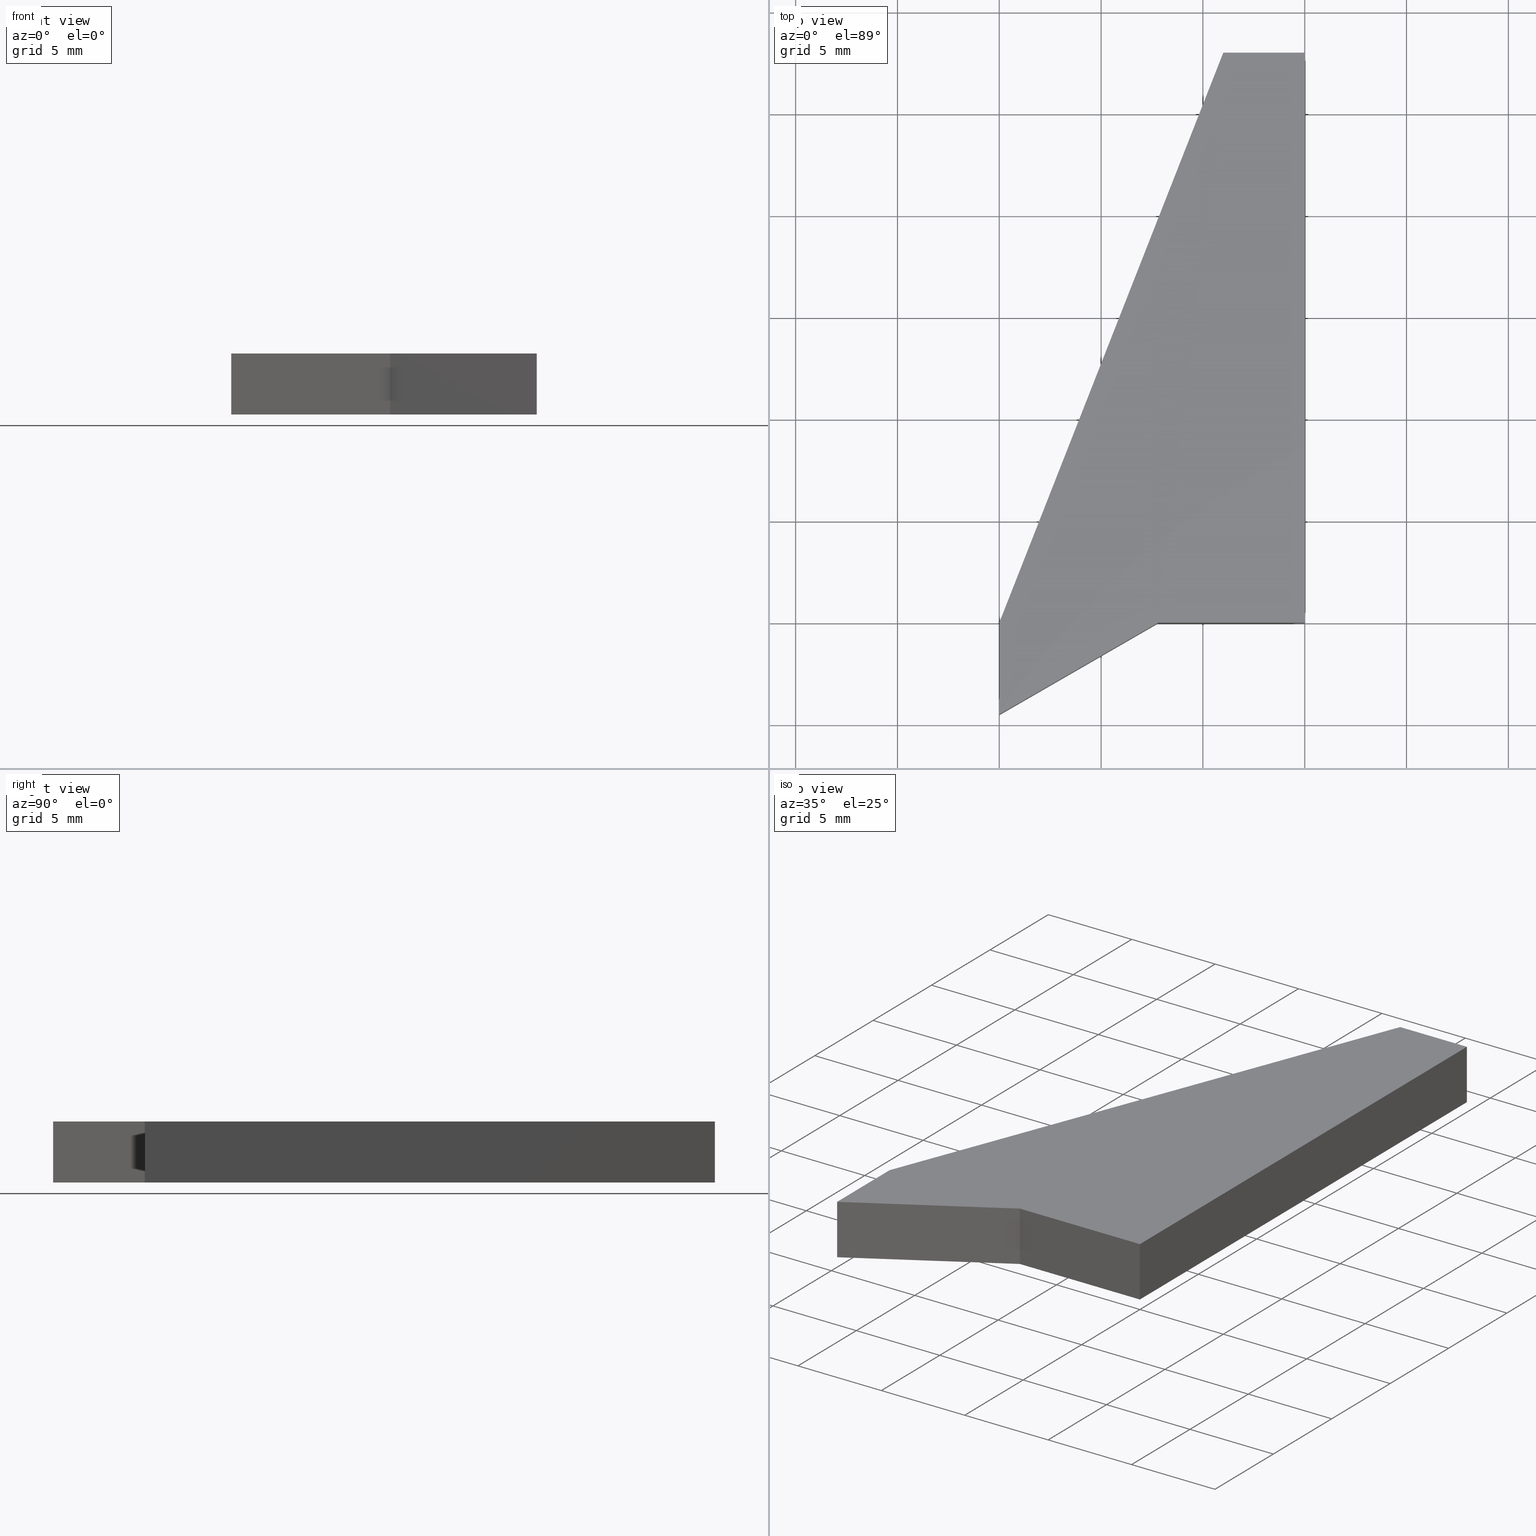
[diagram: canonical four-view strip — front | top / right | iso, engineering-drawing reading convention]
A machine part, canonical four-view strip (front | top / right | iso — engineering-drawing reading convention). The complete STEP part file that produces these views, byte-faithful:
ISO-10303-21;
HEADER;
/* Generated by software containing ST-Developer
 * from STEP Tools, Inc. (www.steptools.com) 
 */

FILE_DESCRIPTION(
/* description */ (''),
/* implementation_level */ '2;1');

FILE_NAME(
/* name */ 'E_3_01_11_00_00_WKZ-0201.stp',
/* time_stamp */ '2025-11-24T13:05:30+01:00',
/* author */ ('d.fischer'),
/* organization */ (''),
/* preprocessor_version */ 'ST-DEVELOPER v20',
/* originating_system */ 'Autodesk Inventor 2025',
/* authorisation */ '');

FILE_SCHEMA (('AUTOMOTIVE_DESIGN { 1 0 10303 214 3 1 1 }'));
ENDSEC;

DATA;
#10=MECHANICAL_DESIGN_GEOMETRIC_PRESENTATION_REPRESENTATION('',(#13),#258);
#11=SHAPE_REPRESENTATION_RELATIONSHIP('SRR','None',#265,#12);
#12=ADVANCED_BREP_SHAPE_REPRESENTATION('',(#14),#257);
#13=STYLED_ITEM('',(#274),#14);
#14=MANIFOLD_SOLID_BREP('Volumenk\X\F6rper1',#149);
#15=FACE_OUTER_BOUND('',#23,.T.);
#16=FACE_OUTER_BOUND('',#24,.T.);
#17=FACE_OUTER_BOUND('',#25,.T.);
#18=FACE_OUTER_BOUND('',#26,.T.);
#19=FACE_OUTER_BOUND('',#27,.T.);
#20=FACE_OUTER_BOUND('',#28,.T.);
#21=FACE_OUTER_BOUND('',#29,.T.);
#22=FACE_OUTER_BOUND('',#30,.T.);
#23=EDGE_LOOP('',(#97,#98,#99,#100,#101,#102));
#24=EDGE_LOOP('',(#103,#104,#105,#106));
#25=EDGE_LOOP('',(#107,#108,#109,#110));
#26=EDGE_LOOP('',(#111,#112,#113,#114));
#27=EDGE_LOOP('',(#115,#116,#117,#118));
#28=EDGE_LOOP('',(#119,#120,#121,#122));
#29=EDGE_LOOP('',(#123,#124,#125,#126));
#30=EDGE_LOOP('',(#127,#128,#129,#130,#131,#132));
#31=LINE('',#220,#49);
#32=LINE('',#222,#50);
#33=LINE('',#224,#51);
#34=LINE('',#226,#52);
#35=LINE('',#228,#53);
#36=LINE('',#229,#54);
#37=LINE('',#233,#55);
#38=LINE('',#234,#56);
#39=LINE('',#235,#57);
#40=LINE('',#238,#58);
#41=LINE('',#239,#59);
#42=LINE('',#242,#60);
#43=LINE('',#243,#61);
#44=LINE('',#246,#62);
#45=LINE('',#247,#63);
#46=LINE('',#250,#64);
#47=LINE('',#251,#65);
#48=LINE('',#253,#66);
#49=VECTOR('',#184,10.);
#50=VECTOR('',#185,10.);
#51=VECTOR('',#186,10.);
#52=VECTOR('',#187,10.);
#53=VECTOR('',#188,10.);
#54=VECTOR('',#189,10.);
#55=VECTOR('',#192,10.);
#56=VECTOR('',#193,10.);
#57=VECTOR('',#194,10.);
#58=VECTOR('',#197,10.);
#59=VECTOR('',#198,10.);
#60=VECTOR('',#201,10.);
#61=VECTOR('',#202,10.);
#62=VECTOR('',#205,10.);
#63=VECTOR('',#206,10.);
#64=VECTOR('',#209,10.);
#65=VECTOR('',#210,10.);
#66=VECTOR('',#213,10.);
#67=VERTEX_POINT('',#218);
#68=VERTEX_POINT('',#219);
#69=VERTEX_POINT('',#221);
#70=VERTEX_POINT('',#223);
#71=VERTEX_POINT('',#225);
#72=VERTEX_POINT('',#227);
#73=VERTEX_POINT('',#231);
#74=VERTEX_POINT('',#232);
#75=VERTEX_POINT('',#237);
#76=VERTEX_POINT('',#241);
#77=VERTEX_POINT('',#245);
#78=VERTEX_POINT('',#249);
#79=EDGE_CURVE('',#67,#68,#31,.T.);
#80=EDGE_CURVE('',#69,#67,#32,.T.);
#81=EDGE_CURVE('',#70,#69,#33,.T.);
#82=EDGE_CURVE('',#71,#70,#34,.T.);
#83=EDGE_CURVE('',#72,#71,#35,.T.);
#84=EDGE_CURVE('',#68,#72,#36,.T.);
#85=EDGE_CURVE('',#73,#74,#37,.T.);
#86=EDGE_CURVE('',#74,#70,#38,.T.);
#87=EDGE_CURVE('',#73,#69,#39,.T.);
#88=EDGE_CURVE('',#74,#75,#40,.T.);
#89=EDGE_CURVE('',#75,#71,#41,.T.);
#90=EDGE_CURVE('',#75,#76,#42,.T.);
#91=EDGE_CURVE('',#76,#72,#43,.T.);
#92=EDGE_CURVE('',#76,#77,#44,.T.);
#93=EDGE_CURVE('',#77,#68,#45,.T.);
#94=EDGE_CURVE('',#77,#78,#46,.T.);
#95=EDGE_CURVE('',#67,#78,#47,.T.);
#96=EDGE_CURVE('',#78,#73,#48,.T.);
#97=ORIENTED_EDGE('',*,*,#79,.F.);
#98=ORIENTED_EDGE('',*,*,#80,.F.);
#99=ORIENTED_EDGE('',*,*,#81,.F.);
#100=ORIENTED_EDGE('',*,*,#82,.F.);
#101=ORIENTED_EDGE('',*,*,#83,.F.);
#102=ORIENTED_EDGE('',*,*,#84,.F.);
#103=ORIENTED_EDGE('',*,*,#85,.T.);
#104=ORIENTED_EDGE('',*,*,#86,.T.);
#105=ORIENTED_EDGE('',*,*,#81,.T.);
#106=ORIENTED_EDGE('',*,*,#87,.F.);
#107=ORIENTED_EDGE('',*,*,#88,.T.);
#108=ORIENTED_EDGE('',*,*,#89,.T.);
#109=ORIENTED_EDGE('',*,*,#82,.T.);
#110=ORIENTED_EDGE('',*,*,#86,.F.);
#111=ORIENTED_EDGE('',*,*,#90,.T.);
#112=ORIENTED_EDGE('',*,*,#91,.T.);
#113=ORIENTED_EDGE('',*,*,#83,.T.);
#114=ORIENTED_EDGE('',*,*,#89,.F.);
#115=ORIENTED_EDGE('',*,*,#92,.T.);
#116=ORIENTED_EDGE('',*,*,#93,.T.);
#117=ORIENTED_EDGE('',*,*,#84,.T.);
#118=ORIENTED_EDGE('',*,*,#91,.F.);
#119=ORIENTED_EDGE('',*,*,#94,.T.);
#120=ORIENTED_EDGE('',*,*,#95,.F.);
#121=ORIENTED_EDGE('',*,*,#79,.T.);
#122=ORIENTED_EDGE('',*,*,#93,.F.);
#123=ORIENTED_EDGE('',*,*,#96,.T.);
#124=ORIENTED_EDGE('',*,*,#87,.T.);
#125=ORIENTED_EDGE('',*,*,#80,.T.);
#126=ORIENTED_EDGE('',*,*,#95,.T.);
#127=ORIENTED_EDGE('',*,*,#85,.F.);
#128=ORIENTED_EDGE('',*,*,#96,.F.);
#129=ORIENTED_EDGE('',*,*,#94,.F.);
#130=ORIENTED_EDGE('',*,*,#92,.F.);
#131=ORIENTED_EDGE('',*,*,#90,.F.);
#132=ORIENTED_EDGE('',*,*,#88,.F.);
#133=PLANE('',#172);
#134=PLANE('',#173);
#135=PLANE('',#174);
#136=PLANE('',#175);
#137=PLANE('',#176);
#138=PLANE('',#177);
#139=PLANE('',#178);
#140=PLANE('',#179);
#141=ADVANCED_FACE('',(#15),#133,.F.);
#142=ADVANCED_FACE('',(#16),#134,.T.);
#143=ADVANCED_FACE('',(#17),#135,.T.);
#144=ADVANCED_FACE('',(#18),#136,.T.);
#145=ADVANCED_FACE('',(#19),#137,.T.);
#146=ADVANCED_FACE('',(#20),#138,.T.);
#147=ADVANCED_FACE('',(#21),#139,.T.);
#148=ADVANCED_FACE('',(#22),#140,.T.);
#149=CLOSED_SHELL('',(#141,#142,#143,#144,#145,#146,#147,#148));
#150=DERIVED_UNIT_ELEMENT(#153,1.);
#151=DERIVED_UNIT_ELEMENT(#260,-3.);
#152=DIMENSIONAL_EXPONENTS(0.,1.,0.,0.,0.,0.,0.);
#153=(
CONVERSION_BASED_UNIT('gram',#155)
MASS_UNIT()
NAMED_UNIT(#152)
);
#154=(
MASS_UNIT()
NAMED_UNIT(*)
SI_UNIT(.KILO.,.GRAM.)
);
#155=MASS_MEASURE_WITH_UNIT(MASS_MEASURE(0.001),#154);
#156=DERIVED_UNIT((#150,#151));
#157=MEASURE_REPRESENTATION_ITEM('density measure',
POSITIVE_RATIO_MEASURE(8.03),#156);
#158=PROPERTY_DEFINITION_REPRESENTATION(#163,#160);
#159=PROPERTY_DEFINITION_REPRESENTATION(#164,#161);
#160=REPRESENTATION('material name',(#162),#257);
#161=REPRESENTATION('density',(#157),#257);
#162=DESCRIPTIVE_REPRESENTATION_ITEM('1.4301','1.4301');
#163=PROPERTY_DEFINITION('material property','material name',#267);
#164=PROPERTY_DEFINITION('material property','density of part',#267);
#165=DATE_TIME_ROLE('creation_date');
#166=APPLIED_DATE_AND_TIME_ASSIGNMENT(#167,#165,(#267));
#167=DATE_AND_TIME(#168,#169);
#168=CALENDAR_DATE(2011,26,10);
#169=LOCAL_TIME(0,0,0.,#170);
#170=COORDINATED_UNIVERSAL_TIME_OFFSET(0,0,.BEHIND.);
#171=AXIS2_PLACEMENT_3D('',#216,#180,#181);
#172=AXIS2_PLACEMENT_3D('',#217,#182,#183);
#173=AXIS2_PLACEMENT_3D('',#230,#190,#191);
#174=AXIS2_PLACEMENT_3D('',#236,#195,#196);
#175=AXIS2_PLACEMENT_3D('',#240,#199,#200);
#176=AXIS2_PLACEMENT_3D('',#244,#203,#204);
#177=AXIS2_PLACEMENT_3D('',#248,#207,#208);
#178=AXIS2_PLACEMENT_3D('',#252,#211,#212);
#179=AXIS2_PLACEMENT_3D('',#254,#214,#215);
#180=DIRECTION('axis',(0.,0.,1.));
#181=DIRECTION('refdir',(1.,0.,0.));
#182=DIRECTION('center_axis',(0.,0.,1.));
#183=DIRECTION('ref_axis',(1.,0.,0.));
#184=DIRECTION('',(-1.,0.,0.));
#185=DIRECTION('',(-6.93971975526328E-17,1.,0.));
#186=DIRECTION('',(1.,1.54197642309049E-16,0.));
#187=DIRECTION('',(0.866025403784439,0.5,0.));
#188=DIRECTION('',(0.,-1.,0.));
#189=DIRECTION('',(-0.365689144775054,-0.930737046320651,0.));
#190=DIRECTION('center_axis',(1.54197642309049E-16,-1.,0.));
#191=DIRECTION('ref_axis',(0.,0.,-1.));
#192=DIRECTION('',(-1.,-1.54197642309049E-16,0.));
#193=DIRECTION('',(0.,0.,-1.));
#194=DIRECTION('',(0.,0.,-1.));
#195=DIRECTION('center_axis',(0.5,-0.866025403784439,0.));
#196=DIRECTION('ref_axis',(0.,0.,-1.));
#197=DIRECTION('',(-0.866025403784439,-0.5,0.));
#198=DIRECTION('',(0.,0.,-1.));
#199=DIRECTION('center_axis',(-1.,0.,0.));
#200=DIRECTION('ref_axis',(0.,0.,1.));
#201=DIRECTION('',(0.,1.,0.));
#202=DIRECTION('',(0.,0.,-1.));
#203=DIRECTION('center_axis',(-0.930737046320651,0.365689144775054,0.));
#204=DIRECTION('ref_axis',(0.,0.,1.));
#205=DIRECTION('',(0.365689144775054,0.930737046320651,0.));
#206=DIRECTION('',(0.,0.,-1.));
#207=DIRECTION('center_axis',(0.,1.,0.));
#208=DIRECTION('ref_axis',(0.,0.,1.));
#209=DIRECTION('',(1.,0.,0.));
#210=DIRECTION('',(0.,0.,1.));
#211=DIRECTION('center_axis',(1.,6.93971975526328E-17,0.));
#212=DIRECTION('ref_axis',(0.,0.,-1.));
#213=DIRECTION('',(6.93971975526328E-17,-1.,0.));
#214=DIRECTION('center_axis',(0.,0.,1.));
#215=DIRECTION('ref_axis',(1.,0.,0.));
#216=CARTESIAN_POINT('',(0.,0.,0.));
#217=CARTESIAN_POINT('Origin',(-5.88464466881287,10.8051094182979,-1.5));
#218=CARTESIAN_POINT('',(-8.32667268468867E-16,27.9966679003209,-1.5));
#219=CARTESIAN_POINT('',(-3.99872300755724,27.9966679003209,-1.5));
#220=CARTESIAN_POINT('',(-3.99872300755724,27.9966679003209,-1.5));
#221=CARTESIAN_POINT('',(1.11022302462516E-15,1.11022302462516E-15,-1.5));
#222=CARTESIAN_POINT('',(-8.32667268468867E-16,27.9966679003209,-1.5));
#223=CARTESIAN_POINT('',(-7.2,0.,-1.5));
#224=CARTESIAN_POINT('',(1.11022302462516E-15,1.11022302462516E-15,-1.5));
#225=CARTESIAN_POINT('',(-15.,-4.50333209967908,-1.5));
#226=CARTESIAN_POINT('',(-7.2,0.,-1.5));
#227=CARTESIAN_POINT('',(-15.,-0.0033320996790781,-1.5));
#228=CARTESIAN_POINT('',(-15.,-4.50333209967908,-1.5));
#229=CARTESIAN_POINT('',(-15.,-0.0033320996790781,-1.5));
#230=CARTESIAN_POINT('Origin',(1.11022302462516E-15,1.11022302462516E-15,
0.));
#231=CARTESIAN_POINT('',(1.11022302462516E-15,1.11022302462516E-15,1.5));
#232=CARTESIAN_POINT('',(-7.2,0.,1.5));
#233=CARTESIAN_POINT('',(1.11022302462516E-15,1.11022302462516E-15,1.5));
#234=CARTESIAN_POINT('',(-7.2,0.,0.));
#235=CARTESIAN_POINT('',(1.11022302462516E-15,1.11022302462516E-15,0.));
#236=CARTESIAN_POINT('Origin',(-7.2,0.,0.));
#237=CARTESIAN_POINT('',(-15.,-4.50333209967908,1.5));
#238=CARTESIAN_POINT('',(-7.2,0.,1.5));
#239=CARTESIAN_POINT('',(-15.,-4.50333209967908,0.));
#240=CARTESIAN_POINT('Origin',(-15.,-4.50333209967908,0.));
#241=CARTESIAN_POINT('',(-15.,-0.0033320996790781,1.5));
#242=CARTESIAN_POINT('',(-15.,-4.50333209967908,1.5));
#243=CARTESIAN_POINT('',(-15.,-0.0033320996790781,0.));
#244=CARTESIAN_POINT('Origin',(-15.,-0.0033320996790781,0.));
#245=CARTESIAN_POINT('',(-3.99872300755724,27.9966679003209,1.5));
#246=CARTESIAN_POINT('',(-15.,-0.0033320996790781,1.5));
#247=CARTESIAN_POINT('',(-3.99872300755724,27.9966679003209,0.));
#248=CARTESIAN_POINT('Origin',(-3.99872300755724,27.9966679003209,0.));
#249=CARTESIAN_POINT('',(-8.32667268468867E-16,27.9966679003209,1.5));
#250=CARTESIAN_POINT('',(-3.99872300755724,27.9966679003209,1.5));
#251=CARTESIAN_POINT('',(-8.32667268468867E-16,27.9966679003209,0.));
#252=CARTESIAN_POINT('Origin',(-8.32667268468867E-16,27.9966679003209,0.));
#253=CARTESIAN_POINT('',(-8.32667268468867E-16,27.9966679003209,1.5));
#254=CARTESIAN_POINT('Origin',(-5.88464466881287,10.8051094182979,1.5));
#255=UNCERTAINTY_MEASURE_WITH_UNIT(LENGTH_MEASURE(0.01),#259,
'DISTANCE_ACCURACY_VALUE',
'Maximum model space distance between geometric entities at asserted c
onnectivities');
#256=UNCERTAINTY_MEASURE_WITH_UNIT(LENGTH_MEASURE(0.01),#259,
'DISTANCE_ACCURACY_VALUE',
'Maximum model space distance between geometric entities at asserted c
onnectivities');
#257=(
GEOMETRIC_REPRESENTATION_CONTEXT(3)
GLOBAL_UNCERTAINTY_ASSIGNED_CONTEXT((#255))
GLOBAL_UNIT_ASSIGNED_CONTEXT((#259,#261,#262))
REPRESENTATION_CONTEXT('','3D')
);
#258=(
GEOMETRIC_REPRESENTATION_CONTEXT(3)
GLOBAL_UNCERTAINTY_ASSIGNED_CONTEXT((#256))
GLOBAL_UNIT_ASSIGNED_CONTEXT((#259,#261,#262))
REPRESENTATION_CONTEXT('','3D')
);
#259=(
LENGTH_UNIT()
NAMED_UNIT(*)
SI_UNIT(.MILLI.,.METRE.)
);
#260=(
LENGTH_UNIT()
NAMED_UNIT(*)
SI_UNIT(.CENTI.,.METRE.)
);
#261=(
NAMED_UNIT(*)
PLANE_ANGLE_UNIT()
SI_UNIT($,.RADIAN.)
);
#262=(
NAMED_UNIT(*)
SI_UNIT($,.STERADIAN.)
SOLID_ANGLE_UNIT()
);
#263=SHAPE_DEFINITION_REPRESENTATION(#264,#265);
#264=PRODUCT_DEFINITION_SHAPE('',$,#267);
#265=SHAPE_REPRESENTATION('',(#171),#257);
#266=PRODUCT_DEFINITION_CONTEXT('part definition',#271,'design');
#267=PRODUCT_DEFINITION('WKZ-0201','E_3_01_11_00_00_WKZ-0201',#268,#266);
#268=PRODUCT_DEFINITION_FORMATION('',$,#273);
#269=PRODUCT_RELATED_PRODUCT_CATEGORY('E_3_01_11_00_00_WKZ-0201',
'E_3_01_11_00_00_WKZ-0201',(#273));
#270=APPLICATION_PROTOCOL_DEFINITION('international standard',
'automotive_design',2009,#271);
#271=APPLICATION_CONTEXT(
'Core Data for Automotive Mechanical Design Process');
#272=PRODUCT_CONTEXT('part definition',#271,'mechanical');
#273=PRODUCT('WKZ-0201','E_3_01_11_00_00_WKZ-0201',$,(#272));
#274=PRESENTATION_STYLE_ASSIGNMENT((#275));
#275=SURFACE_STYLE_USAGE(.BOTH.,#278);
#276=SURFACE_STYLE_RENDERING_WITH_PROPERTIES($,#282,(#277));
#277=SURFACE_STYLE_TRANSPARENT(0.);
#278=SURFACE_SIDE_STYLE('',(#279,#276));
#279=SURFACE_STYLE_FILL_AREA(#280);
#280=FILL_AREA_STYLE('',(#281));
#281=FILL_AREA_STYLE_COLOUR('',#282);
#282=COLOUR_RGB('',0.92156862745098,0.92156862745098,0.92156862745098);
ENDSEC;
END-ISO-10303-21;
